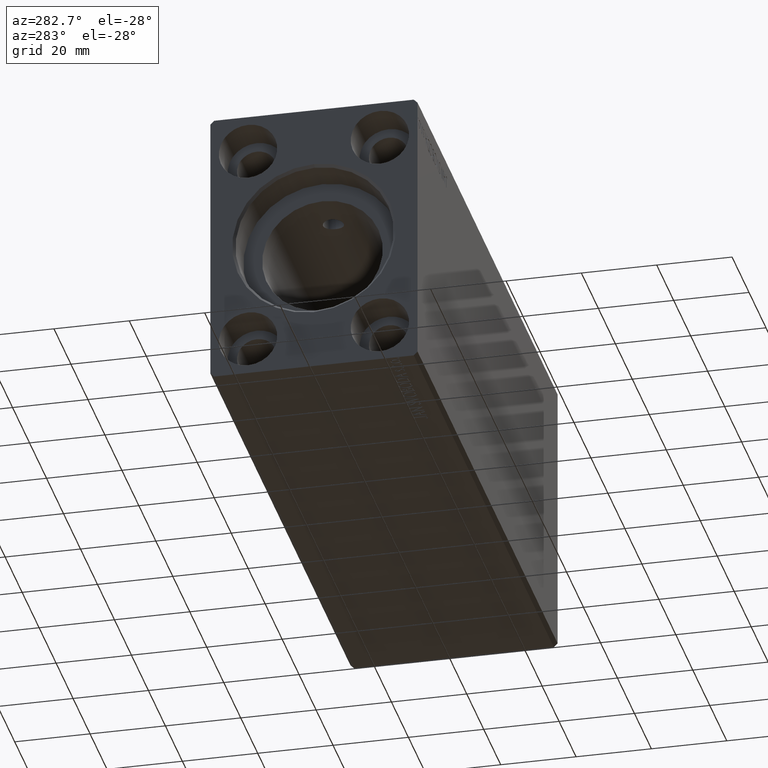
[diagram: clean part render]
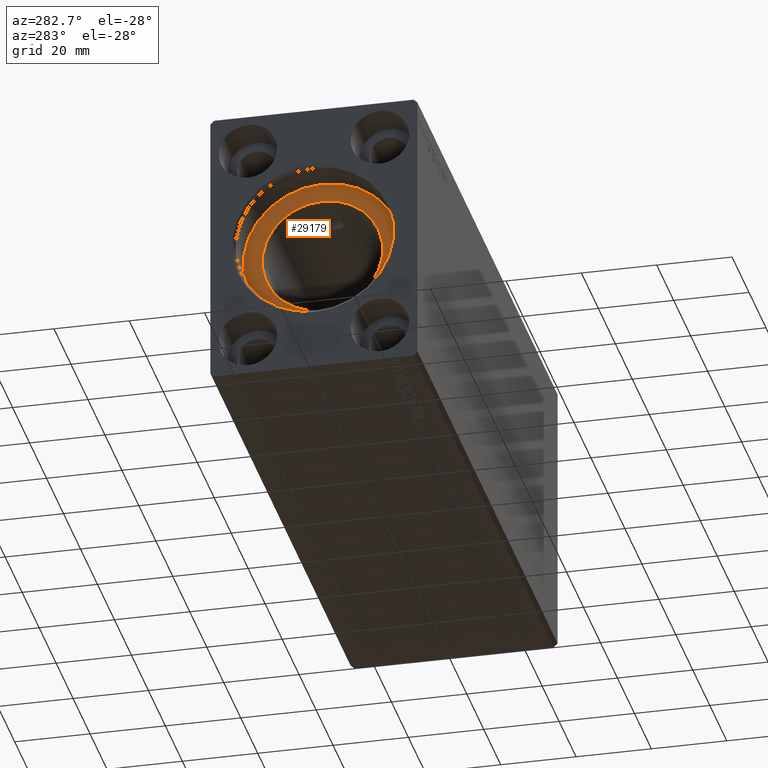
[diagram: same view with one face highlighted and labeled with its STEP entity id]
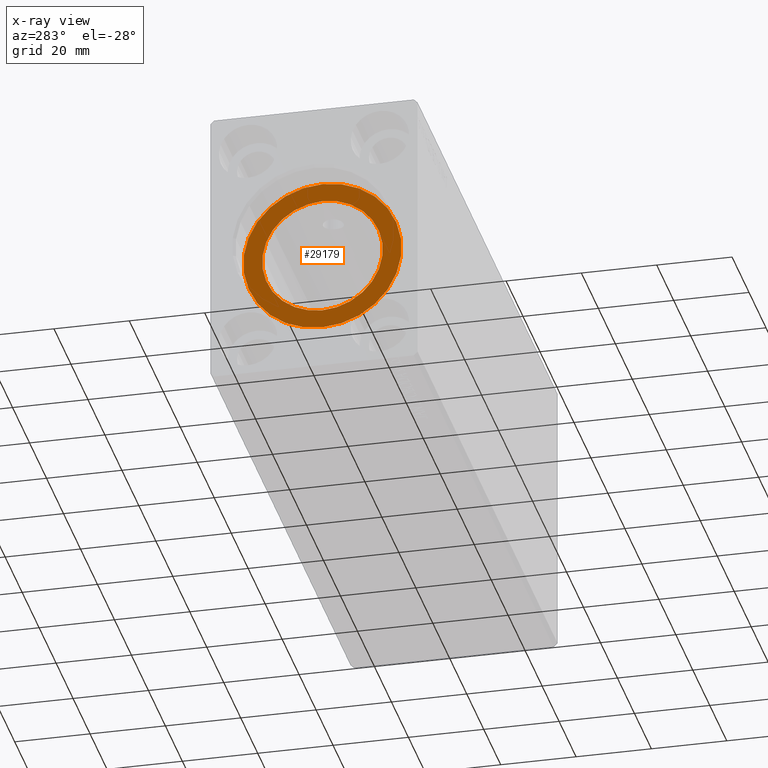
[diagram: x-ray of the same camera — body ghosted, the highlighted face saturated]
A machine part, auxiliary view. The second image highlights one B-rep face of the part: STEP entity #29179.
The next image is the same camera in x-ray: the body ghosted, the highlighted face saturated — about 0% of this face is hidden behind the body in this view.
In plain terms, the highlighted planar face has unit normal (-1, 0, 0).
Its self-contained STEP definition (entity closure, byte-faithful):
#3435 = CARTESIAN_POINT ( 'NONE',  ( 10.00000000000000888, 1.959434878635765131E-15, -16.00000000000000000 ) ) ;
#5501 = CARTESIAN_POINT ( 'NONE',  ( 10.00000000000000000, 0.000000000000000000, 0.000000000000000000 ) ) ;
#5704 = DIRECTION ( 'NONE',  ( 0.000000000000000000, 0.000000000000000000, 1.000000000000000000 ) ) ;
#6114 = DIRECTION ( 'NONE',  ( 0.000000000000000000, 0.000000000000000000, 1.000000000000000000 ) ) ;
#6728 = AXIS2_PLACEMENT_3D ( 'NONE', #25877, #41821, #18764 ) ;
#7392 = CARTESIAN_POINT ( 'NONE',  ( 10.00000000000000000, 0.000000000000000000, 21.00000000000000000 ) ) ;
#9555 = DIRECTION ( 'NONE',  ( -1.000000000000000000, 0.000000000000000000, 0.000000000000000000 ) ) ;
#9812 = EDGE_LOOP ( 'NONE', ( #21397, #36054 ) ) ;
#10550 = CARTESIAN_POINT ( 'NONE',  ( 10.00000000000000000, 2.571758278209441661E-15, -21.00000000000000000 ) ) ;
#10835 = CIRCLE ( 'NONE', #28011, 16.00000000000000000 ) ;
#10838 = CARTESIAN_POINT ( 'NONE',  ( 10.00000000000000888, 0.000000000000000000, 0.000000000000000000 ) ) ;
#11254 = DIRECTION ( 'NONE',  ( -1.000000000000000000, 0.000000000000000000, 0.000000000000000000 ) ) ;
#11766 = DIRECTION ( 'NONE',  ( -1.000000000000000000, 0.000000000000000000, 0.000000000000000000 ) ) ;
#12157 = CIRCLE ( 'NONE', #26598, 21.00000000000000000 ) ;
#13322 = AXIS2_PLACEMENT_3D ( 'NONE', #29367, #9555, #6114 ) ;
#14532 = VERTEX_POINT ( 'NONE', #26836 ) ;
#15057 = EDGE_LOOP ( 'NONE', ( #18161, #21906 ) ) ;
#18161 = ORIENTED_EDGE ( 'NONE', *, *, #38377, .F. ) ;
#18635 = PLANE ( 'NONE',  #20391 ) ;
#18764 = DIRECTION ( 'NONE',  ( 0.000000000000000000, 0.000000000000000000, 1.000000000000000000 ) ) ;
#18939 = VERTEX_POINT ( 'NONE', #10550 ) ;
#20391 = AXIS2_PLACEMENT_3D ( 'NONE', #5501, #11766, #5704 ) ;
#20704 = CARTESIAN_POINT ( 'NONE',  ( 10.00000000000000000, 0.000000000000000000, 0.000000000000000000 ) ) ;
#21342 = EDGE_CURVE ( 'NONE', #39532, #18939, #31879, .T. ) ;
#21397 = ORIENTED_EDGE ( 'NONE', *, *, #21342, .T. ) ;
#21906 = ORIENTED_EDGE ( 'NONE', *, *, #37541, .F. ) ;
#23719 = DIRECTION ( 'NONE',  ( 0.000000000000000000, 0.000000000000000000, 1.000000000000000000 ) ) ;
#25877 = CARTESIAN_POINT ( 'NONE',  ( 10.00000000000000888, 0.000000000000000000, 0.000000000000000000 ) ) ;
#26598 = AXIS2_PLACEMENT_3D ( 'NONE', #20704, #40517, #23719 ) ;
#26836 = CARTESIAN_POINT ( 'NONE',  ( 10.00000000000000888, 0.000000000000000000, 16.00000000000000000 ) ) ;
#28011 = AXIS2_PLACEMENT_3D ( 'NONE', #10838, #11254, #33866 ) ;
#29179 = ADVANCED_FACE ( 'NONE', ( #35213, #42104 ), #18635, .T. ) ;
#29367 = CARTESIAN_POINT ( 'NONE',  ( 10.00000000000000000, 0.000000000000000000, 0.000000000000000000 ) ) ;
#29553 = EDGE_CURVE ( 'NONE', #18939, #39532, #12157, .T. ) ;
#31879 = CIRCLE ( 'NONE', #13322, 21.00000000000000000 ) ;
#33866 = DIRECTION ( 'NONE',  ( 0.000000000000000000, 0.000000000000000000, 1.000000000000000000 ) ) ;
#35213 = FACE_BOUND ( 'NONE', #15057, .T. ) ;
#35917 = VERTEX_POINT ( 'NONE', #3435 ) ;
#36054 = ORIENTED_EDGE ( 'NONE', *, *, #29553, .T. ) ;
#37541 = EDGE_CURVE ( 'NONE', #35917, #14532, #10835, .T. ) ;
#38377 = EDGE_CURVE ( 'NONE', #14532, #35917, #39716, .T. ) ;
#39532 = VERTEX_POINT ( 'NONE', #7392 ) ;
#39716 = CIRCLE ( 'NONE', #6728, 16.00000000000000000 ) ;
#40517 = DIRECTION ( 'NONE',  ( -1.000000000000000000, 0.000000000000000000, 0.000000000000000000 ) ) ;
#41821 = DIRECTION ( 'NONE',  ( -1.000000000000000000, 0.000000000000000000, 0.000000000000000000 ) ) ;
#42104 = FACE_OUTER_BOUND ( 'NONE', #9812, .T. ) ;